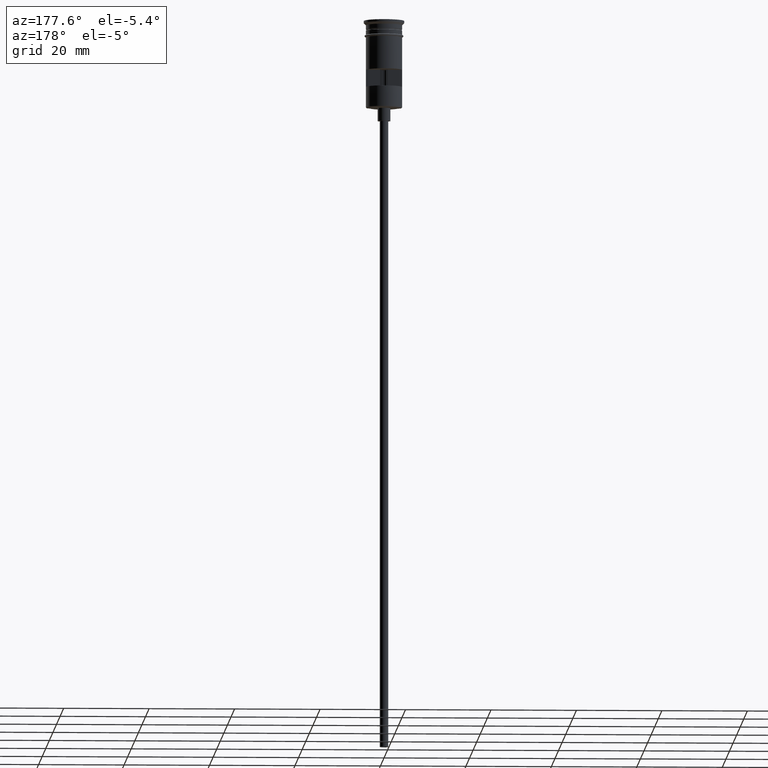
[diagram: clean part render]
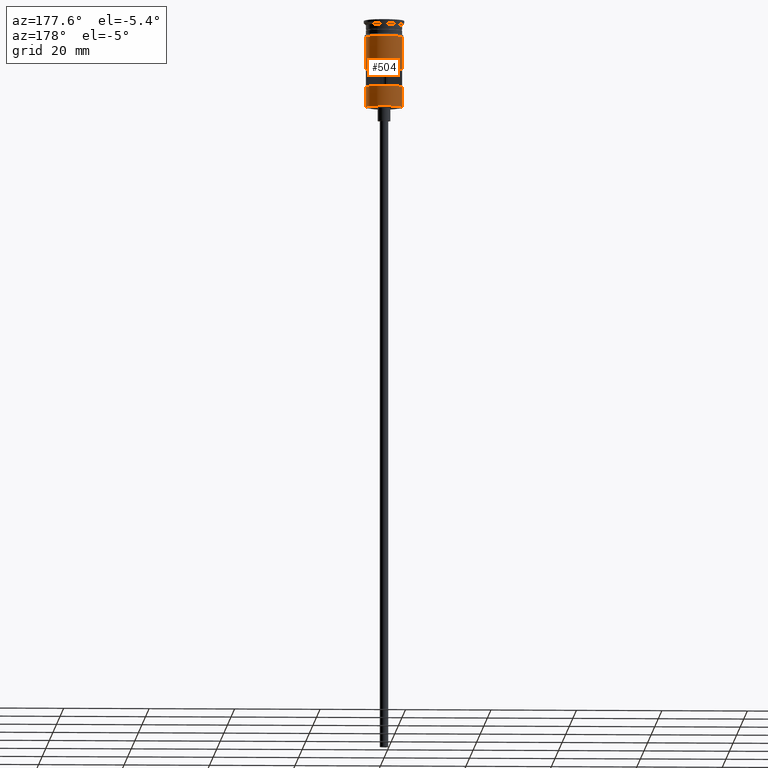
[diagram: same view with one face highlighted and labeled with its STEP entity id]
A machine part, auxiliary view. The second image highlights one B-rep face of the part: STEP entity #504.
In plain terms, the highlighted cylindrical surface (edge-blend (fillet) strip) has radius 4.25 mm, axis along (-0, -0, 1).
Its self-contained STEP definition (entity closure, byte-faithful):
#4 = ORIENTED_EDGE ( 'NONE', *, *, #997, .F. ) ;
#27 = ORIENTED_EDGE ( 'NONE', *, *, #1147, .F. ) ;
#45 = EDGE_CURVE ( 'NONE', #209, #755, #373, .T. ) ;
#52 = ORIENTED_EDGE ( 'NONE', *, *, #279, .F. ) ;
#60 = VERTEX_POINT ( 'NONE', #528 ) ;
#62 = VECTOR ( 'NONE', #1218, 1000.000000000000000 ) ;
#123 = ORIENTED_EDGE ( 'NONE', *, *, #45, .T. ) ;
#149 = CARTESIAN_POINT ( 'NONE',  ( -4.207433897282282231, 0.5999999999999996447, 0.000000000000000000 ) ) ;
#155 = DIRECTION ( 'NONE',  ( -0.000000000000000000, -0.000000000000000000, 1.000000000000000000 ) ) ;
#174 = DIRECTION ( 'NONE',  ( -1.000000000000000000, 0.000000000000000000, 0.000000000000000000 ) ) ;
#179 = DIRECTION ( 'NONE',  ( -1.000000000000000000, 0.000000000000000000, 0.000000000000000000 ) ) ;
#193 = EDGE_CURVE ( 'NONE', #450, #294, #837, .T. ) ;
#209 = VERTEX_POINT ( 'NONE', #1211 ) ;
#241 = ORIENTED_EDGE ( 'NONE', *, *, #762, .F. ) ;
#269 = DIRECTION ( 'NONE',  ( 1.000000000000000000, 0.000000000000000000, 0.000000000000000000 ) ) ;
#271 = ORIENTED_EDGE ( 'NONE', *, *, #1216, .F. ) ;
#275 = VECTOR ( 'NONE', #791, 1000.000000000000000 ) ;
#279 = EDGE_CURVE ( 'NONE', #209, #727, #1029, .T. ) ;
#282 = DIRECTION ( 'NONE',  ( 1.000000000000000000, 0.000000000000000000, 0.000000000000000000 ) ) ;
#290 = CARTESIAN_POINT ( 'NONE',  ( 4.249999999999996447, 0.000000000000000000, 0.000000000000000000 ) ) ;
#294 = VERTEX_POINT ( 'NONE', #860 ) ;
#320 = AXIS2_PLACEMENT_3D ( 'NONE', #542, #1530, #179 ) ;
#350 = LINE ( 'NONE', #859, #1328 ) ;
#368 = CARTESIAN_POINT ( 'NONE',  ( -4.207433897282282231, 0.5999999999999996447, -15.50000000000000000 ) ) ;
#373 = CIRCLE ( 'NONE', #1173, 4.249999999999996447 ) ;
#378 = FACE_BOUND ( 'NONE', #1167, .T. ) ;
#394 = DIRECTION ( 'NONE',  ( -0.000000000000000000, -0.000000000000000000, 1.000000000000000000 ) ) ;
#427 = ORIENTED_EDGE ( 'NONE', *, *, #731, .F. ) ;
#428 = CARTESIAN_POINT ( 'NONE',  ( 0.000000000000000000, 0.000000000000000000, -11.50000000000000000 ) ) ;
#450 = VERTEX_POINT ( 'NONE', #951 ) ;
#500 = ORIENTED_EDGE ( 'NONE', *, *, #545, .T. ) ;
#502 = CARTESIAN_POINT ( 'NONE',  ( 4.249999999999999112, 0.000000000000000000, -3.799999999999998934 ) ) ;
#504 = ADVANCED_FACE ( 'NONE', ( #378, #1366 ), #1124, .T. ) ;
#525 = DIRECTION ( 'NONE',  ( 1.000000000000000000, 0.000000000000000000, 0.000000000000000000 ) ) ;
#528 = CARTESIAN_POINT ( 'NONE',  ( 4.207433897282282231, 0.5999999999999996447, -15.50000000000000000 ) ) ;
#542 = CARTESIAN_POINT ( 'NONE',  ( 0.000000000000000000, 0.000000000000000000, -15.50000000000000000 ) ) ;
#545 = EDGE_CURVE ( 'NONE', #755, #450, #350, .T. ) ;
#555 = CARTESIAN_POINT ( 'NONE',  ( 0.000000000000000000, 0.000000000000000000, -3.799999999999998934 ) ) ;
#611 = CARTESIAN_POINT ( 'NONE',  ( 4.207433897282282231, 0.5999999999999996447, 0.000000000000000000 ) ) ;
#626 = LINE ( 'NONE', #611, #62 ) ;
#638 = CARTESIAN_POINT ( 'NONE',  ( 0.000000000000000000, 0.000000000000000000, 0.000000000000000000 ) ) ;
#647 = DIRECTION ( 'NONE',  ( -0.000000000000000000, -0.000000000000000000, 1.000000000000000000 ) ) ;
#659 = EDGE_LOOP ( 'NONE', ( #500, #1168, #427, #271, #52, #123 ) ) ;
#662 = CARTESIAN_POINT ( 'NONE',  ( -4.249999999999994671, 0.000000000000000000, -20.30000000000000426 ) ) ;
#706 = DIRECTION ( 'NONE',  ( -0.000000000000000000, -0.000000000000000000, 1.000000000000000000 ) ) ;
#727 = VERTEX_POINT ( 'NONE', #1392 ) ;
#731 = EDGE_CURVE ( 'NONE', #1001, #294, #1414, .T. ) ;
#733 = CARTESIAN_POINT ( 'NONE',  ( 4.249999999999994671, 5.204748896376245769E-16, -20.49999999999999645 ) ) ;
#755 = VERTEX_POINT ( 'NONE', #662 ) ;
#762 = EDGE_CURVE ( 'NONE', #60, #1054, #1591, .T. ) ;
#791 = DIRECTION ( 'NONE',  ( -0.000000000000000000, -0.000000000000000000, 1.000000000000000000 ) ) ;
#809 = VECTOR ( 'NONE', #155, 1000.000000000000000 ) ;
#837 = LINE ( 'NONE', #1190, #1070 ) ;
#859 = CARTESIAN_POINT ( 'NONE',  ( -4.249999999999994671, 0.000000000000000000, -20.49999999999999645 ) ) ;
#860 = CARTESIAN_POINT ( 'NONE',  ( -4.249999999999999112, 5.204748896376250699E-16, -3.799999999999998934 ) ) ;
#934 = CARTESIAN_POINT ( 'NONE',  ( 0.000000000000000000, 0.000000000000000000, -20.30000000000000426 ) ) ;
#951 = CARTESIAN_POINT ( 'NONE',  ( -4.249999999999994671, 0.000000000000000000, -17.80000000000000071 ) ) ;
#969 = AXIS2_PLACEMENT_3D ( 'NONE', #428, #1529, #282 ) ;
#997 = EDGE_CURVE ( 'NONE', #1517, #60, #626, .T. ) ;
#1001 = VERTEX_POINT ( 'NONE', #502 ) ;
#1025 = ORIENTED_EDGE ( 'NONE', *, *, #1089, .F. ) ;
#1029 = LINE ( 'NONE', #733, #809 ) ;
#1054 = VERTEX_POINT ( 'NONE', #368 ) ;
#1070 = VECTOR ( 'NONE', #1307, 1000.000000000000000 ) ;
#1087 = CARTESIAN_POINT ( 'NONE',  ( -4.207433897282282231, 0.5999999999999996447, -11.50000000000000000 ) ) ;
#1089 = EDGE_CURVE ( 'NONE', #1054, #1275, #1407, .T. ) ;
#1124 = CYLINDRICAL_SURFACE ( 'NONE', #1279, 4.249999999999996447 ) ;
#1147 = EDGE_CURVE ( 'NONE', #1275, #1517, #1258, .T. ) ;
#1167 = EDGE_LOOP ( 'NONE', ( #4, #27, #1025, #241 ) ) ;
#1168 = ORIENTED_EDGE ( 'NONE', *, *, #193, .T. ) ;
#1173 = AXIS2_PLACEMENT_3D ( 'NONE', #934, #1570, #174 ) ;
#1190 = CARTESIAN_POINT ( 'NONE',  ( -4.249999999999996447, 5.204748896376247741E-16, 0.000000000000000000 ) ) ;
#1211 = CARTESIAN_POINT ( 'NONE',  ( 4.249999999999994671, 5.204748896376245769E-16, -20.30000000000000426 ) ) ;
#1216 = EDGE_CURVE ( 'NONE', #727, #1001, #1266, .T. ) ;
#1218 = DIRECTION ( 'NONE',  ( 0.000000000000000000, 0.000000000000000000, -1.000000000000000000 ) ) ;
#1258 = CIRCLE ( 'NONE', #969, 4.249999999999996447 ) ;
#1266 = LINE ( 'NONE', #290, #275 ) ;
#1275 = VERTEX_POINT ( 'NONE', #1087 ) ;
#1279 = AXIS2_PLACEMENT_3D ( 'NONE', #638, #394, #269 ) ;
#1295 = DIRECTION ( 'NONE',  ( -0.000000000000000000, -0.000000000000000000, 1.000000000000000000 ) ) ;
#1307 = DIRECTION ( 'NONE',  ( -0.000000000000000000, -0.000000000000000000, 1.000000000000000000 ) ) ;
#1328 = VECTOR ( 'NONE', #706, 1000.000000000000000 ) ;
#1329 = AXIS2_PLACEMENT_3D ( 'NONE', #555, #1295, #525 ) ;
#1366 = FACE_OUTER_BOUND ( 'NONE', #659, .T. ) ;
#1392 = CARTESIAN_POINT ( 'NONE',  ( 4.249999999999996447, 5.204748896376247741E-16, -17.80000000000000071 ) ) ;
#1407 = LINE ( 'NONE', #149, #1543 ) ;
#1414 = CIRCLE ( 'NONE', #1329, 4.249999999999999112 ) ;
#1517 = VERTEX_POINT ( 'NONE', #1598 ) ;
#1529 = DIRECTION ( 'NONE',  ( -0.000000000000000000, 0.000000000000000000, -1.000000000000000000 ) ) ;
#1530 = DIRECTION ( 'NONE',  ( 0.000000000000000000, 0.000000000000000000, 1.000000000000000000 ) ) ;
#1543 = VECTOR ( 'NONE', #647, 1000.000000000000000 ) ;
#1570 = DIRECTION ( 'NONE',  ( 0.000000000000000000, 0.000000000000000000, 1.000000000000000000 ) ) ;
#1591 = CIRCLE ( 'NONE', #320, 4.249999999999996447 ) ;
#1598 = CARTESIAN_POINT ( 'NONE',  ( 4.207433897282282231, 0.5999999999999996447, -11.50000000000000000 ) ) ;